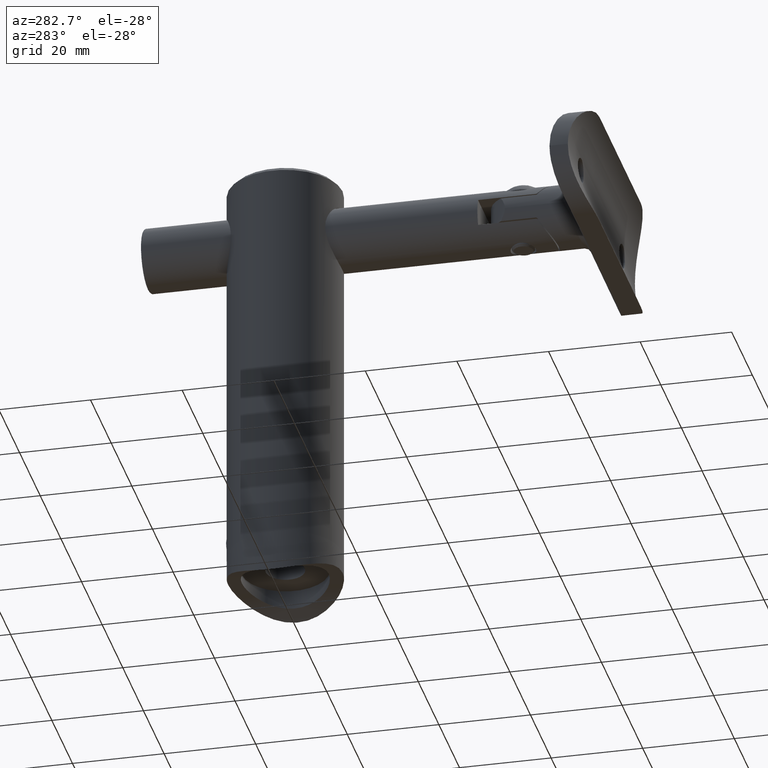
[diagram: clean part render]
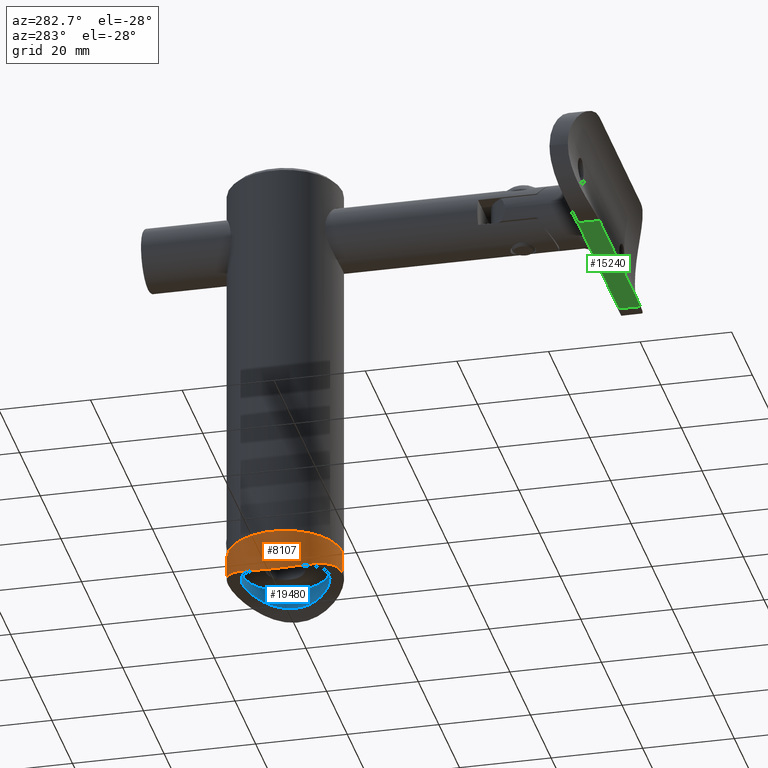
[diagram: same view with three faces highlighted in distinct colors, each labeled with its STEP entity id]
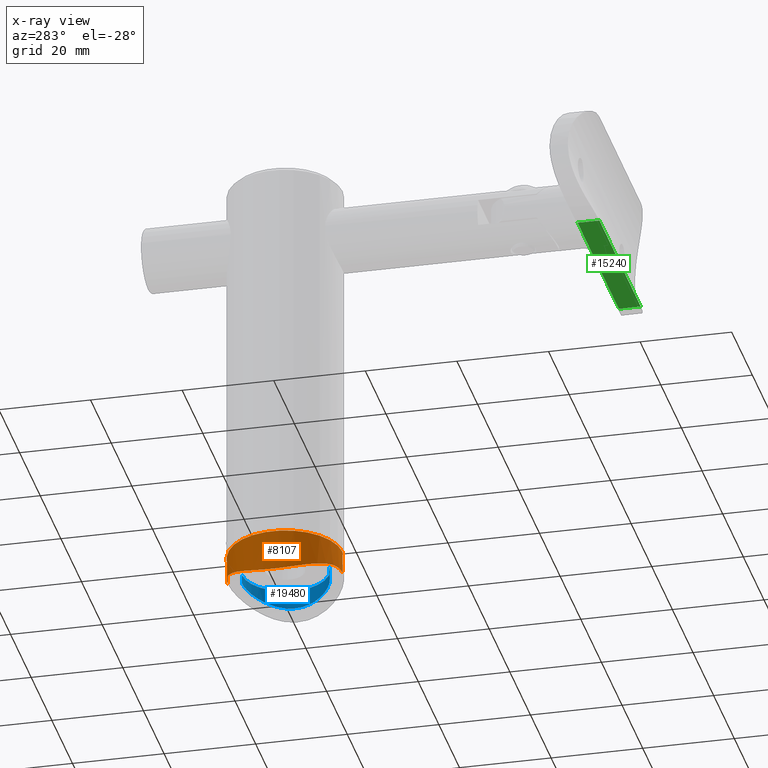
[diagram: x-ray of the same camera — body ghosted, the three highlighted faces saturated]
A machine part, auxiliary view with three faces highlighted in distinct colors.
The next image is the same camera in x-ray (body ghosted, the three faces saturated) — at least one of them is partly hidden behind the body in this view.
Their STEP definitions:

[orange] entity #8107 — the highlighted cylindrical surface (partial cylindrical patch) has radius 12.5 mm, axis along (0, 0, -1).
#442 = CARTESIAN_POINT ( 'NONE',  ( -6.341786811947642377, 10.80157710299961416, -0.9585494183447915706 ) ) ;
#583 = CARTESIAN_POINT ( 'NONE',  ( -12.47743914675955601, -0.8590761027902552582, -4.060680339665352356 ) ) ;
#649 = CARTESIAN_POINT ( 'NONE',  ( -11.82258794161551663, 4.080128214362264139, -3.602040162122799760 ) ) ;
#949 = VERTEX_POINT ( 'NONE', #11295 ) ;
#1563 = CARTESIAN_POINT ( 'NONE',  ( 0.000000000000000000, -6.123233995736764310E-16, 4.999999999999998224 ) ) ;
#1644 = CARTESIAN_POINT ( 'NONE',  ( 0.000000000000000000, 12.50000000000000000, 1.530808498934191521E-15 ) ) ;
#1765 = DIRECTION ( 'NONE',  ( 0.000000000000000000, 1.000000000000000000, 1.224646799147353207E-16 ) ) ;
#1864 = EDGE_CURVE ( 'NONE', #19331, #5452, #7823, .T. ) ;
#2034 = CARTESIAN_POINT ( 'NONE',  ( -9.131153934576975217, -8.545773481795482240, -2.064755425040014636 ) ) ;
#2173 = CARTESIAN_POINT ( 'NONE',  ( -11.19951824176104083, -5.610365273027632327, -3.195789650799769621 ) ) ;
#2318 = CARTESIAN_POINT ( 'NONE',  ( -11.36768113948518710, 5.214514510065643371, -3.304441698743988631 ) ) ;
#2394 = CARTESIAN_POINT ( 'NONE',  ( -3.314268895872201970, 12.05973822206781776, -0.2568123239795907509 ) ) ;
#3444 = DIRECTION ( 'NONE',  ( 0.000000000000000000, 1.000000000000000000, 1.387778780781445676E-16 ) ) ;
#3763 = VERTEX_POINT ( 'NONE', #16924 ) ;
#3765 = CARTESIAN_POINT ( 'NONE',  ( -11.81299108572395085, -4.107946293886024058, -3.595584469514719217 ) ) ;
#3837 = CARTESIAN_POINT ( 'NONE',  ( -5.615852831644746246, -11.19741679516262423, -0.7426697937745319056 ) ) ;
#3906 = CARTESIAN_POINT ( 'NONE',  ( -2.897069353050999663, -12.16672379034243434, -0.1948899815732027807 ) ) ;
#3977 = CARTESIAN_POINT ( 'NONE',  ( -4.096177303198109243, -11.81715717646936348, -0.3955541790620944465 ) ) ;
#4046 = CARTESIAN_POINT ( 'NONE',  ( -4.497906677117297747, 11.66996163373025475, -0.4789896541132539487 ) ) ;
#5316 = CARTESIAN_POINT ( 'NONE',  ( -11.19286692429163033, 5.579736034962381019, -3.194160573709634576 ) ) ;
#5344 = LINE ( 'NONE', #8400, #14729 ) ;
#5452 = VERTEX_POINT ( 'NONE', #13165 ) ;
#5459 = CARTESIAN_POINT ( 'NONE',  ( -8.275085783090281311, -9.377256695960115351, -1.678894091352528761 ) ) ;
#5518 = CARTESIAN_POINT ( 'NONE',  ( -12.16283172011047320, -2.913318855141282526, -3.835786719495810626 ) ) ;
#5592 = CARTESIAN_POINT ( 'NONE',  ( -10.80857782698150871, 6.291928922265645596, -2.960889035143795756 ) ) ;
#5678 = CARTESIAN_POINT ( 'NONE',  ( 1.530808498934191521E-15, -12.50000000000000000, 0.000000000000000000 ) ) ;
#6273 = CIRCLE ( 'NONE', #11776, 12.50000000000000000 ) ;
#6656 = ORIENTED_EDGE ( 'NONE', *, *, #16801, .T. ) ;
#6949 = CARTESIAN_POINT ( 'NONE',  ( -9.926636468171466277, 7.639131853456515131, -2.460587857928711042 ) ) ;
#7013 = CARTESIAN_POINT ( 'NONE',  ( -6.327442067174430917, -10.81070993117193524, -0.9537559661941119593 ) ) ;
#7156 = CARTESIAN_POINT ( 'NONE',  ( -9.398677270982499721, -8.250758313400194055, -2.195094919896831698 ) ) ;
#7233 = CARTESIAN_POINT ( 'NONE',  ( 0.000000000000000000, 12.50000000000000000, -5.261240927112904875E-16 ) ) ;
#7823 = B_SPLINE_CURVE_WITH_KNOTS ( 'NONE', 3,
 ( #16731, #20063, #13558, #3906, #16879, #3977, #13629, #3837, #7013, #15239, #16664, #5459, #11923, #2034, #7156, #13420, #13490, #12001, #2173, #18490, #3765, #8779, #5518, #10361, #15314, #583, #18354, #13695, #16803, #10431, #15029, #649, #12071, #2318, #5316, #5592, #19859, #6949, #18214, #18285, #8575, #19925, #10224, #442, #11848, #4046, #20280, #2394, #18638, #8930, #20203, #10568, #16944, #7233 ),
 .UNSPECIFIED., .F., .F.,
 ( 4, 2, 2, 2, 2, 2, 2, 2, 2, 2, 2, 2, 2, 2, 2, 2, 2, 2, 2, 2, 2, 2, 2, 2, 2, 2, 4 ),
 ( 1.489330742102178506E-18, 0.002502676506719043580, 0.003754014760078563419, 0.005005353013438084558, 0.007508029520157129440, 0.008759367773516652314, 0.01001070602687617432, 0.01126204428023569633, 0.01251338253359522007, 0.01501605904031426235, 0.01626739729367378262, 0.01751873554703330463, 0.01877007380039282664, 0.02002141205375234517, 0.02252408856047138572, 0.02377542681383090772, 0.02502676506719042973, 0.02627810332054994827, 0.02752944157390947028, 0.03003211808062851082, 0.03128345633398803977, 0.03253479458734756524, 0.03503747109406661620, 0.03628880934742614167, 0.03754014760078566715, 0.03879148585414519262, 0.04004282410750471810 ),
 .UNSPECIFIED. ) ;
#8107 = ADVANCED_FACE ( 'NONE', ( #13169 ), #12647, .T. ) ;
#8400 = CARTESIAN_POINT ( 'NONE',  ( 1.530808498934191521E-15, -12.50000000000000000, -1.530808498934191521E-15 ) ) ;
#8575 = CARTESIAN_POINT ( 'NONE',  ( -8.277917003856288147, 9.374850157636908321, -1.680064173656778292 ) ) ;
#8779 = CARTESIAN_POINT ( 'NONE',  ( -12.05928981790097154, -3.315947863389198336, -3.763379523277602168 ) ) ;
#8930 = CARTESIAN_POINT ( 'NONE',  ( -2.099149467039293615, 12.32948117877257665, -0.1002009966568856714 ) ) ;
#9694 = CARTESIAN_POINT ( 'NONE',  ( 0.000000000000000000, 0.000000000000000000, 0.000000000000000000 ) ) ;
#9779 = DIRECTION ( 'NONE',  ( -0.000000000000000000, 1.224646799147353207E-16, -1.000000000000000000 ) ) ;
#10224 = CARTESIAN_POINT ( 'NONE',  ( -7.337423735946506653, 10.12782281091194925, -1.307140519180897575 ) ) ;
#10361 = CARTESIAN_POINT ( 'NONE',  ( -12.32914928014637646, -2.100947460388592702, -3.953479877655620367 ) ) ;
#10431 = CARTESIAN_POINT ( 'NONE',  ( -12.16984790407604500, 2.883996753870301966, -3.840709158031511805 ) ) ;
#10568 = CARTESIAN_POINT ( 'NONE',  ( -0.8493063021244290356, 12.47821017736088223, -0.01286860730927284584 ) ) ;
#10928 = ORIENTED_EDGE ( 'NONE', *, *, #1864, .F. ) ;
#11280 = ORIENTED_EDGE ( 'NONE', *, *, #12185, .F. ) ;
#11295 = CARTESIAN_POINT ( 'NONE',  ( 0.000000000000000000, 12.50000000000000000, 5.000000000000000000 ) ) ;
#11319 = DIRECTION ( 'NONE',  ( -0.000000000000000000, 1.224646799147353207E-16, -1.000000000000000000 ) ) ;
#11776 = AXIS2_PLACEMENT_3D ( 'NONE', #1563, #13176, #3444 ) ;
#11848 = CARTESIAN_POINT ( 'NONE',  ( -5.634036949567863495, 11.18857916297123722, -0.7475340222135644641 ) ) ;
#11923 = CARTESIAN_POINT ( 'NONE',  ( -8.569357823279590392, -9.109024265841890511, -1.806659297143438980 ) ) ;
#12001 = CARTESIAN_POINT ( 'NONE',  ( -10.81845405890102718, -6.312809980033596169, -2.960938029448110242 ) ) ;
#12071 = CARTESIAN_POINT ( 'NONE',  ( -11.68253881569349950, 4.464708600178406428, -3.508378586956059308 ) ) ;
#12185 = EDGE_CURVE ( 'NONE', #3763, #19331, #5344, .T. ) ;
#12552 = EDGE_LOOP ( 'NONE', ( #11280, #6656, #20996, #10928 ) ) ;
#12647 = CYLINDRICAL_SURFACE ( 'NONE', #16772, 12.50000000000000000 ) ;
#13165 = CARTESIAN_POINT ( 'NONE',  ( 0.000000000000000000, 12.50000000000000000, -5.261240927112904875E-16 ) ) ;
#13169 = FACE_OUTER_BOUND ( 'NONE', #12552, .T. ) ;
#13176 = DIRECTION ( 'NONE',  ( -0.000000000000000000, 1.224646799147353207E-16, -1.000000000000000000 ) ) ;
#13420 = CARTESIAN_POINT ( 'NONE',  ( -9.907181247822165915, -7.632686742754887455, -2.455152407378312418 ) ) ;
#13490 = CARTESIAN_POINT ( 'NONE',  ( -10.14840342747128865, -7.308901243718507246, -2.585073453788890863 ) ) ;
#13558 = CARTESIAN_POINT ( 'NONE',  ( -1.677193835120720955, -12.41473863385456156, -0.05058743771265820921 ) ) ;
#13629 = CARTESIAN_POINT ( 'NONE',  ( -4.484770986791658309, -11.67494392594038821, -0.4761762759779034071 ) ) ;
#13695 = CARTESIAN_POINT ( 'NONE',  ( -12.50092163456458394, 0.8325225752573188753, -4.077880983653366265 ) ) ;
#14432 = LINE ( 'NONE', #1644, #17968 ) ;
#14729 = VECTOR ( 'NONE', #19755, 1000.000000000000000 ) ;
#15029 = CARTESIAN_POINT ( 'NONE',  ( -12.06641939663192531, 3.289765162964161327, -3.768324835594354383 ) ) ;
#15239 = CARTESIAN_POINT ( 'NONE',  ( -7.335528771759535438, -10.12938846727852571, -1.306364138595595970 ) ) ;
#15314 = CARTESIAN_POINT ( 'NONE',  ( -12.39224670344945167, -1.690183733302201619, -3.998982945155021174 ) ) ;
#16664 = CARTESIAN_POINT ( 'NONE',  ( -7.658649217430768097, -9.887116871149991937, -1.428917258316853012 ) ) ;
#16731 = CARTESIAN_POINT ( 'NONE',  ( 1.530808498934191521E-15, -12.50000000000000000, 0.000000000000000000 ) ) ;
#16772 = AXIS2_PLACEMENT_3D ( 'NONE', #9694, #11319, #1765 ) ;
#16801 = EDGE_CURVE ( 'NONE', #3763, #949, #6273, .T. ) ;
#16803 = CARTESIAN_POINT ( 'NONE',  ( -12.41682490114521720, 1.662227575578486993, -4.015612738538502313 ) ) ;
#16879 = CARTESIAN_POINT ( 'NONE',  ( -3.299544761782136071, -12.06386656912337862, -0.2544362983334328976 ) ) ;
#16924 = CARTESIAN_POINT ( 'NONE',  ( 1.530808498934191521E-15, -12.50000000000000000, 4.999999999999996447 ) ) ;
#16944 = CARTESIAN_POINT ( 'NONE',  ( -0.4242796211472562584, 12.49999999999999467, -5.563124168022411105E-16 ) ) ;
#17968 = VECTOR ( 'NONE', #9779, 1000.000000000000000 ) ;
#18214 = CARTESIAN_POINT ( 'NONE',  ( -9.421823641441761765, 8.253338742496669767, -2.198572594055990148 ) ) ;
#18285 = CARTESIAN_POINT ( 'NONE',  ( -8.576233453199913370, 9.102626546136093566, -1.809681003019512291 ) ) ;
#18354 = CARTESIAN_POINT ( 'NONE',  ( -12.49952788043968255, -0.4368485482069772163, -4.076863514619260442 ) ) ;
#18490 = CARTESIAN_POINT ( 'NONE',  ( -11.67210911516328764, -4.491739155361245572, -3.501495300727554216 ) ) ;
#18638 = CARTESIAN_POINT ( 'NONE',  ( -2.913028033381145132, 12.16292737376221034, -0.1970903410221276075 ) ) ;
#19331 = VERTEX_POINT ( 'NONE', #5678 ) ;
#19755 = DIRECTION ( 'NONE',  ( -0.000000000000000000, 1.224646799147353207E-16, -1.000000000000000000 ) ) ;
#19859 = CARTESIAN_POINT ( 'NONE',  ( -10.59835307524083170, 6.639730706434162855, -2.837515640770625680 ) ) ;
#19925 = CARTESIAN_POINT ( 'NONE',  ( -7.658205628427092293, 9.887548328762060024, -1.428715490893913032 ) ) ;
#20048 = EDGE_CURVE ( 'NONE', #949, #5452, #14432, .T. ) ;
#20063 = CARTESIAN_POINT ( 'NONE',  ( -0.8474616539393305947, -12.50000000000000355, -0.000000000000000000 ) ) ;
#20203 = CARTESIAN_POINT ( 'NONE',  ( -1.686513140915326225, 12.39284970661473650, -0.06302927873795100000 ) ) ;
#20280 = CARTESIAN_POINT ( 'NONE',  ( -4.105579123586816870, 11.81380058909568298, -0.3974590877189427274 ) ) ;
#20996 = ORIENTED_EDGE ( 'NONE', *, *, #20048, .T. ) ;

[blue] entity #19480 — the highlighted cylindrical surface (partial cylindrical patch) has radius 9.5 mm, axis along (0, 0, -1).
#172 = CARTESIAN_POINT ( 'NONE',  ( 1.770460806215789106E-16, 9.500000000000001776, 9.112057225737407952E-16 ) ) ;
#457 = CARTESIAN_POINT ( 'NONE',  ( 5.802747939028370716, -7.528133642313273199, -0.8081019980018004922 ) ) ;
#598 = CARTESIAN_POINT ( 'NONE',  ( 9.421294845262025319, -1.260516764465202000, -2.208411381633107684 ) ) ;
#635 = LINE ( 'NONE', #13291, #16933 ) ;
#817 = CARTESIAN_POINT ( 'NONE',  ( 9.006626258510808114, 3.084760097826170888, -2.006523651473711922 ) ) ;
#959 = CARTESIAN_POINT ( 'NONE',  ( 4.239366036345280087, 8.507269633893045579, -0.4263258807038411424 ) ) ;
#970 = LINE ( 'NONE', #12233, #3288 ) ;
#1030 = CARTESIAN_POINT ( 'NONE',  ( 8.528820743348861200, 4.230162898690669415, -1.789485642318580538 ) ) ;
#1293 = AXIS2_PLACEMENT_3D ( 'NONE', #9387, #19017, #12587 ) ;
#1610 = DIRECTION ( 'NONE',  ( -0.000000000000000000, 1.224646799147353207E-16, -1.000000000000000000 ) ) ;
#2050 = CARTESIAN_POINT ( 'NONE',  ( 5.556618797412577138, -7.711570629305333213, -0.7394703336228837243 ) ) ;
#2090 = DIRECTION ( 'NONE',  ( -0.000000000000000000, 1.224646799147353207E-16, -1.000000000000000000 ) ) ;
#2163 = CARTESIAN_POINT ( 'NONE',  ( 0.000000000000000000, -2.449293598294704935E-16, 1.999999999999998668 ) ) ;
#2189 = CARTESIAN_POINT ( 'NONE',  ( 4.237929542509485614, -8.507993653205097928, -0.4260297671875604708 ) ) ;
#2264 = CARTESIAN_POINT ( 'NONE',  ( 9.499832844097339191, -0.3183877192732357253, -2.247607645243915098 ) ) ;
#2338 = CARTESIAN_POINT ( 'NONE',  ( 7.159169670778224415, -6.274913268511824960, -1.240137327851930316 ) ) ;
#2405 = EDGE_CURVE ( 'NONE', #20772, #17704, #635, .T. ) ;
#2760 = AXIS2_PLACEMENT_3D ( 'NONE', #2163, #2090, #13544 ) ;
#3288 = VECTOR ( 'NONE', #7313, 1000.000000000000000 ) ;
#3853 = CARTESIAN_POINT ( 'NONE',  ( 7.546544590892585447, -5.803101047029879389, -1.385225386363504452 ) ) ;
#3993 = CARTESIAN_POINT ( 'NONE',  ( 9.500164495551658206, 0.3083332013167103813, -2.247773888224446459 ) ) ;
#4062 = CARTESIAN_POINT ( 'NONE',  ( 4.784301838411238350, 8.213179465520736855, -0.5450195661238212974 ) ) ;
#4282 = CARTESIAN_POINT ( 'NONE',  ( 3.091537738773918242, 9.004584169050772857, -0.2184693847345247075 ) ) ;
#5332 = CARTESIAN_POINT ( 'NONE',  ( 3.954528069767159426, -8.643450230156611624, -0.3700392544246411397 ) ) ;
#5400 = CARTESIAN_POINT ( 'NONE',  ( 3.090247328760950651, -9.005024596866380904, -0.2182794052958286768 ) ) ;
#5610 = CARTESIAN_POINT ( 'NONE',  ( 3.955815279988136535, 8.642861845624873141, -0.3702836407211533842 ) ) ;
#5906 = CARTESIAN_POINT ( 'NONE',  ( 1.268301397354656634, 9.420298035749835819, -0.03561470730267386753 ) ) ;
#6893 = CARTESIAN_POINT ( 'NONE',  ( 9.484863755966435050, 0.6212872423304436342, -2.240080453359254875 ) ) ;
#7229 = VERTEX_POINT ( 'NONE', #12162 ) ;
#7313 = DIRECTION ( 'NONE',  ( -0.000000000000000000, 1.224646799147353207E-16, -1.000000000000000000 ) ) ;
#7314 = CARTESIAN_POINT ( 'NONE',  ( 9.189751204263838957, 2.489596316880424709, -2.094826447112144496 ) ) ;
#8082 = CYLINDRICAL_SURFACE ( 'NONE', #1293, 9.500000000000001776 ) ;
#8520 = CARTESIAN_POINT ( 'NONE',  ( 1.163408702497735518E-15, -9.500000000000001776, 5.232710601427350400E-16 ) ) ;
#8733 = CARTESIAN_POINT ( 'NONE',  ( 8.528049326743902370, -4.231401509425090524, -1.789155950979903320 ) ) ;
#8796 = CARTESIAN_POINT ( 'NONE',  ( 5.046899678109953769, -8.054386237921365321, -0.6078148238815975768 ) ) ;
#9025 = CARTESIAN_POINT ( 'NONE',  ( 0.3180640098494555423, 9.500000000000005329, 1.712888848892041935E-17 ) ) ;
#9387 = CARTESIAN_POINT ( 'NONE',  ( 0.000000000000000000, 0.000000000000000000, 0.000000000000000000 ) ) ;
#9797 = CARTESIAN_POINT ( 'NONE',  ( 1.163414459189985682E-15, -9.500000000000001776, 1.999999999999997335 ) ) ;
#10173 = CARTESIAN_POINT ( 'NONE',  ( 9.484201583095373422, -0.6321545745067549404, -2.239748020085416513 ) ) ;
#10382 = CARTESIAN_POINT ( 'NONE',  ( 9.373631752533530204, -1.575889711037794072, -2.184747713698973026 ) ) ;
#10519 = CARTESIAN_POINT ( 'NONE',  ( 6.285444926192725212, 7.150170555696141683, -0.9479603564727804299 ) ) ;
#10736 = CARTESIAN_POINT ( 'NONE',  ( 8.231209276049824553, 4.782705285943062101, -1.659707158651053893 ) ) ;
#11684 = EDGE_CURVE ( 'NONE', #7229, #20772, #12985, .T. ) ;
#11798 = CARTESIAN_POINT ( 'NONE',  ( 9.423119199064263540, 1.246379904746041323, -2.209317699341028174 ) ) ;
#12015 = CARTESIAN_POINT ( 'NONE',  ( 1.257325311143241864, -9.421744633931506741, -0.03497028654710137435 ) ) ;
#12085 = CARTESIAN_POINT ( 'NONE',  ( 6.507548724582323807, -6.927941348104147856, -1.022183798446198111 ) ) ;
#12162 = CARTESIAN_POINT ( 'NONE',  ( 0.000000000000000000, 9.500000000000001776, 2.000000000000000000 ) ) ;
#12233 = CARTESIAN_POINT ( 'NONE',  ( 0.000000000000000000, 9.500000000000001776, 1.163414459189985682E-15 ) ) ;
#12587 = DIRECTION ( 'NONE',  ( 0.000000000000000000, 1.000000000000000000, 1.224646799147353207E-16 ) ) ;
#12594 = EDGE_CURVE ( 'NONE', #7229, #17354, #970, .T. ) ;
#12705 = EDGE_LOOP ( 'NONE', ( #20685, #14265, #14315, #14878 ) ) ;
#12985 = CIRCLE ( 'NONE', #2760, 9.500000000000001776 ) ;
#13291 = CARTESIAN_POINT ( 'NONE',  ( 1.163414459189985682E-15, -9.500000000000001776, -1.163414459189985682E-15 ) ) ;
#13436 = EDGE_CURVE ( 'NONE', #17704, #17354, #16299, .T. ) ;
#13544 = DIRECTION ( 'NONE',  ( 0.000000000000000000, 1.000000000000000000, 1.369518533665900065E-16 ) ) ;
#13712 = CARTESIAN_POINT ( 'NONE',  ( 9.187067631764410436, -2.498277563287346403, -2.093536295156249061 ) ) ;
#13861 = CARTESIAN_POINT ( 'NONE',  ( 1.579045547333426391, 9.373056352659103752, -0.05665375992293917445 ) ) ;
#13928 = CARTESIAN_POINT ( 'NONE',  ( 5.047492488738597238, 8.053990395188916906, -0.6079671353264675115 ) ) ;
#14265 = ORIENTED_EDGE ( 'NONE', *, *, #11684, .F. ) ;
#14315 = ORIENTED_EDGE ( 'NONE', *, *, #12594, .T. ) ;
#14878 = ORIENTED_EDGE ( 'NONE', *, *, #13436, .F. ) ;
#14940 = FACE_OUTER_BOUND ( 'NONE', #12705, .T. ) ;
#15116 = CARTESIAN_POINT ( 'NONE',  ( 6.277740334854450488, -7.136851971882867574, -0.9492873198018613179 ) ) ;
#15186 = CARTESIAN_POINT ( 'NONE',  ( 8.230211339286329419, -4.784343041113610084, -1.659292500980773299 ) ) ;
#15406 = CARTESIAN_POINT ( 'NONE',  ( 9.376383539940048806, 1.559915371507269333, -2.186104354117754500 ) ) ;
#15631 = CARTESIAN_POINT ( 'NONE',  ( 0.6371383030246021706, 9.483915768273302405, -0.007221795264935388335 ) ) ;
#16299 = B_SPLINE_CURVE_WITH_KNOTS ( 'NONE', 3,
 ( #8520, #18373, #19872, #12015, #18434, #18506, #5400, #5332, #2189, #16750, #8796, #2050, #457, #15116, #12085, #2338, #3853, #15186, #8733, #20076, #13712, #10382, #598, #10173, #2264, #3993, #6893, #11798, #15406, #7314, #817, #1030, #10736, #20221, #18656, #10519, #18800, #13928, #4062, #959, #5610, #4282, #18727, #13861, #5906, #15631, #9025, #18580 ),
 .UNSPECIFIED., .F., .F.,
 ( 4, 2, 2, 2, 2, 2, 2, 2, 2, 2, 2, 2, 2, 2, 2, 2, 2, 2, 2, 2, 2, 2, 2, 4 ),
 ( 0.03010768622472317912, 0.03104749670329303921, 0.03198730718186289929, 0.03386692813900261251, 0.03480673861757246912, 0.03574654909614233267, 0.03668635957471218928, 0.03762617005328204589, 0.03950579101042176605, 0.04138541196756148621, 0.04326503292470119943, 0.04420484340327106298, 0.04514465388184091960, 0.04608446436041077621, 0.04702427483898063976, 0.04890389579612035298, 0.05078351675326008008, 0.05266313771039980024, 0.05454275866753952040, 0.05548256914610938395, 0.05642237962467924056, 0.05830200058181896766, 0.05924181106038882427, 0.06018162153895869476 ),
 .UNSPECIFIED. ) ;
#16750 = CARTESIAN_POINT ( 'NONE',  ( 4.783310945264682701, -8.213765227419397519, -0.5447870395397985677 ) ) ;
#16933 = VECTOR ( 'NONE', #1610, 1000.000000000000000 ) ;
#17354 = VERTEX_POINT ( 'NONE', #172 ) ;
#17704 = VERTEX_POINT ( 'NONE', #20573 ) ;
#18373 = CARTESIAN_POINT ( 'NONE',  ( 0.3134130146678049678, -9.500000000000001776, 7.404126750186650867E-16 ) ) ;
#18434 = CARTESIAN_POINT ( 'NONE',  ( 1.571899491397569681, -9.374307366943451569, -0.05609940030373498226 ) ) ;
#18506 = CARTESIAN_POINT ( 'NONE',  ( 2.494860140251018876, -9.188019338493548460, -0.1382508987464481087 ) ) ;
#18580 = CARTESIAN_POINT ( 'NONE',  ( 1.770460806215789106E-16, 9.500000000000001776, 9.112057225737407952E-16 ) ) ;
#18656 = CARTESIAN_POINT ( 'NONE',  ( 7.158647790673239086, 6.275788293500274229, -1.239897559073271927 ) ) ;
#18727 = CARTESIAN_POINT ( 'NONE',  ( 2.497496432925480736, 9.187099242428551804, -0.1386512340528949505 ) ) ;
#18800 = CARTESIAN_POINT ( 'NONE',  ( 5.810475658887211736, 7.540831483076037678, -0.8050407131529412341 ) ) ;
#19017 = DIRECTION ( 'NONE',  ( -0.000000000000000000, 1.224646799147353207E-16, -1.000000000000000000 ) ) ;
#19480 = ADVANCED_FACE ( 'NONE', ( #14940 ), #8082, .F. ) ;
#19872 = CARTESIAN_POINT ( 'NONE',  ( 0.6275527403728607956, -9.484530375464524710, -0.006946249597816606808 ) ) ;
#20076 = CARTESIAN_POINT ( 'NONE',  ( 9.004623482620557340, -3.090168278521506551, -2.005593315994512515 ) ) ;
#20221 = CARTESIAN_POINT ( 'NONE',  ( 7.546992758907244969, 5.802583587964756262, -1.385390471452557115 ) ) ;
#20573 = CARTESIAN_POINT ( 'NONE',  ( 1.163408702497735518E-15, -9.500000000000001776, 5.232710601427350400E-16 ) ) ;
#20685 = ORIENTED_EDGE ( 'NONE', *, *, #2405, .F. ) ;
#20772 = VERTEX_POINT ( 'NONE', #9797 ) ;

[green] entity #15240 — the highlighted planar face has unit normal (0, 0, 1).
#1438 = FACE_OUTER_BOUND ( 'NONE', #19650, .T. ) ;
#1570 = CARTESIAN_POINT ( 'NONE',  ( 12.49999999999999645, 3.318729470161013495, 32.50000000000000000 ) ) ;
#1628 = EDGE_CURVE ( 'NONE', #9713, #4100, #4537, .T. ) ;
#1744 = CARTESIAN_POINT ( 'NONE',  ( 12.50000000000000355, 3.318729470161013495, -20.00000000000000355 ) ) ;
#1856 = DIRECTION ( 'NONE',  ( 0.000000000000000000, 0.000000000000000000, -1.000000000000000000 ) ) ;
#2179 = VECTOR ( 'NONE', #19253, 1000.000000000000000 ) ;
#2728 = ORIENTED_EDGE ( 'NONE', *, *, #9593, .T. ) ;
#4100 = VERTEX_POINT ( 'NONE', #16174 ) ;
#4537 = LINE ( 'NONE', #12869, #16953 ) ;
#4617 = ORIENTED_EDGE ( 'NONE', *, *, #1628, .T. ) ;
#4865 = CARTESIAN_POINT ( 'NONE',  ( 12.50000000000000355, 3.318729470161013495, -20.00000000000000355 ) ) ;
#4919 = DIRECTION ( 'NONE',  ( 0.000000000000000000, 0.000000000000000000, -1.000000000000000000 ) ) ;
#7820 = DIRECTION ( 'NONE',  ( -0.000000000000000000, -1.000000000000000000, -0.000000000000000000 ) ) ;
#7882 = ORIENTED_EDGE ( 'NONE', *, *, #17204, .F. ) ;
#9593 = EDGE_CURVE ( 'NONE', #11812, #16306, #15140, .T. ) ;
#9713 = VERTEX_POINT ( 'NONE', #16629 ) ;
#9864 = VECTOR ( 'NONE', #1856, 1000.000000000000000 ) ;
#10863 = VECTOR ( 'NONE', #4919, 1000.000000000000000 ) ;
#10968 = CARTESIAN_POINT ( 'NONE',  ( 12.49999999999999645, 8.077208171562682892, 32.50000000000000000 ) ) ;
#11418 = ORIENTED_EDGE ( 'NONE', *, *, #20108, .T. ) ;
#11812 = VERTEX_POINT ( 'NONE', #1744 ) ;
#12032 = AXIS2_PLACEMENT_3D ( 'NONE', #18524, #20175, #18599 ) ;
#12869 = CARTESIAN_POINT ( 'NONE',  ( 12.50000000000000355, 3.318729470161013495, 20.00000000000000000 ) ) ;
#13475 = CARTESIAN_POINT ( 'NONE',  ( 12.50000000000000355, 8.077208171562682892, -20.00000000000000355 ) ) ;
#15140 = LINE ( 'NONE', #4865, #2179 ) ;
#15240 = ADVANCED_FACE ( 'NONE', ( #1438 ), #15423, .F. ) ;
#15423 = PLANE ( 'NONE',  #12032 ) ;
#16174 = CARTESIAN_POINT ( 'NONE',  ( 12.50000000000000355, 3.318729470161013495, 20.00000000000000000 ) ) ;
#16306 = VERTEX_POINT ( 'NONE', #13475 ) ;
#16629 = CARTESIAN_POINT ( 'NONE',  ( 12.50000000000000355, 8.077208171562682892, 20.00000000000000000 ) ) ;
#16953 = VECTOR ( 'NONE', #7820, 1000.000000000000000 ) ;
#17204 = EDGE_CURVE ( 'NONE', #9713, #16306, #19227, .T. ) ;
#18469 = LINE ( 'NONE', #1570, #9864 ) ;
#18524 = CARTESIAN_POINT ( 'NONE',  ( 12.49999999999999645, 3.318729470161013495, 32.50000000000000000 ) ) ;
#18599 = DIRECTION ( 'NONE',  ( 0.000000000000000000, 0.000000000000000000, 1.000000000000000000 ) ) ;
#19227 = LINE ( 'NONE', #10968, #10863 ) ;
#19253 = DIRECTION ( 'NONE',  ( 0.000000000000000000, 1.000000000000000000, 0.000000000000000000 ) ) ;
#19650 = EDGE_LOOP ( 'NONE', ( #11418, #2728, #7882, #4617 ) ) ;
#20108 = EDGE_CURVE ( 'NONE', #4100, #11812, #18469, .T. ) ;
#20175 = DIRECTION ( 'NONE',  ( -1.000000000000000000, 0.000000000000000000, 0.000000000000000000 ) ) ;